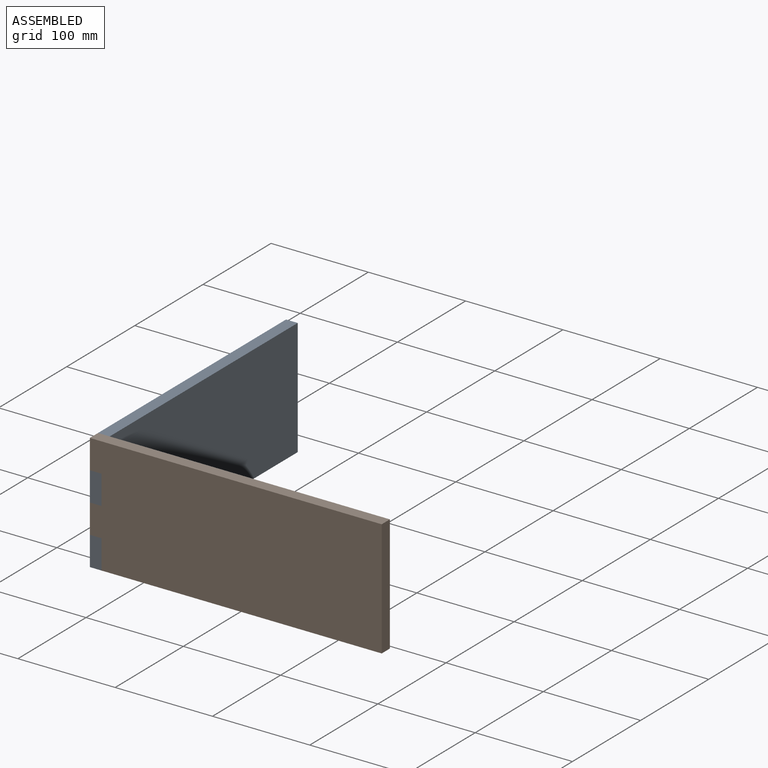
[diagram: assembled view]
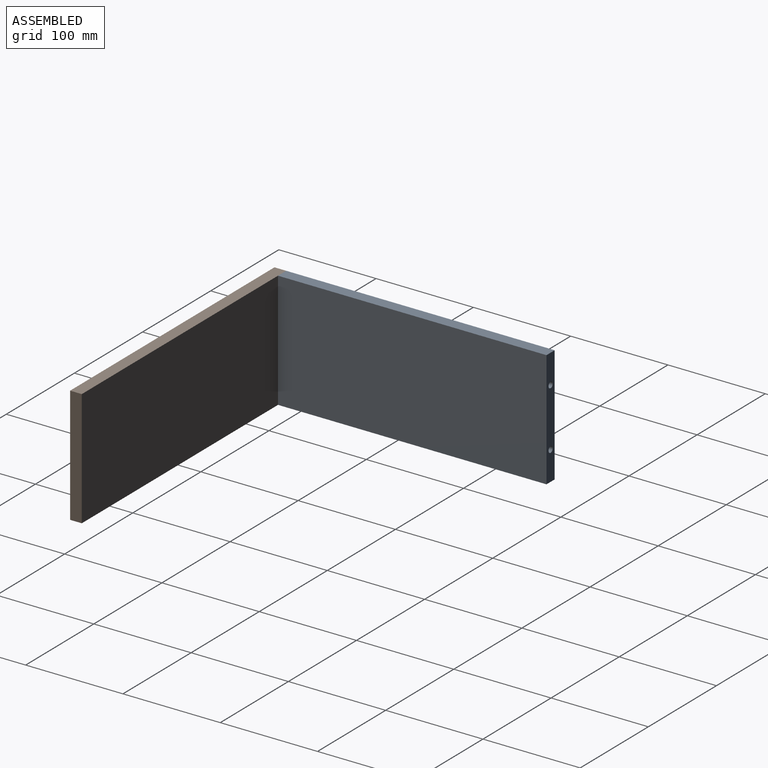
[diagram: assembled view, second angle]
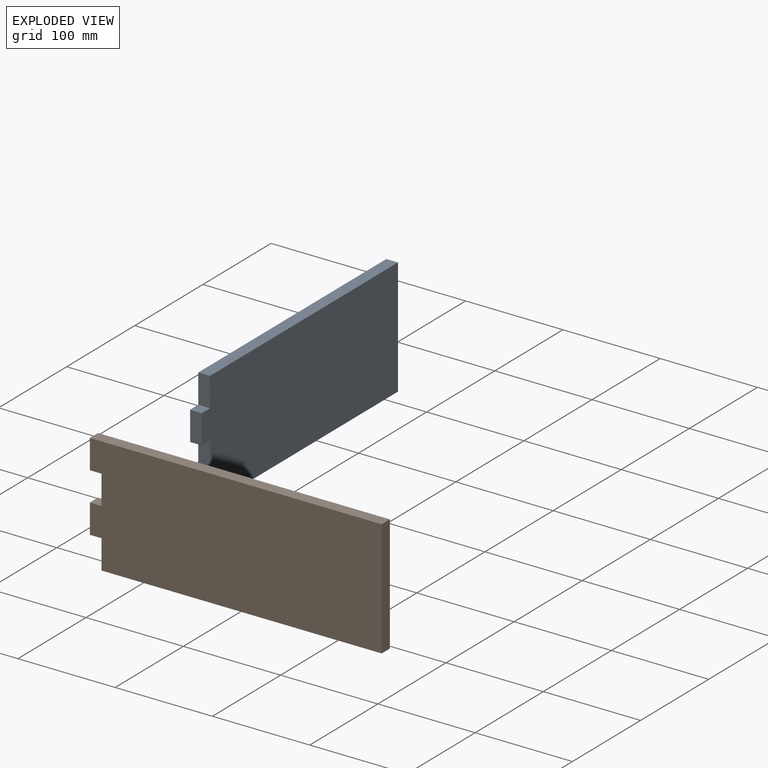
[diagram: exploded view]
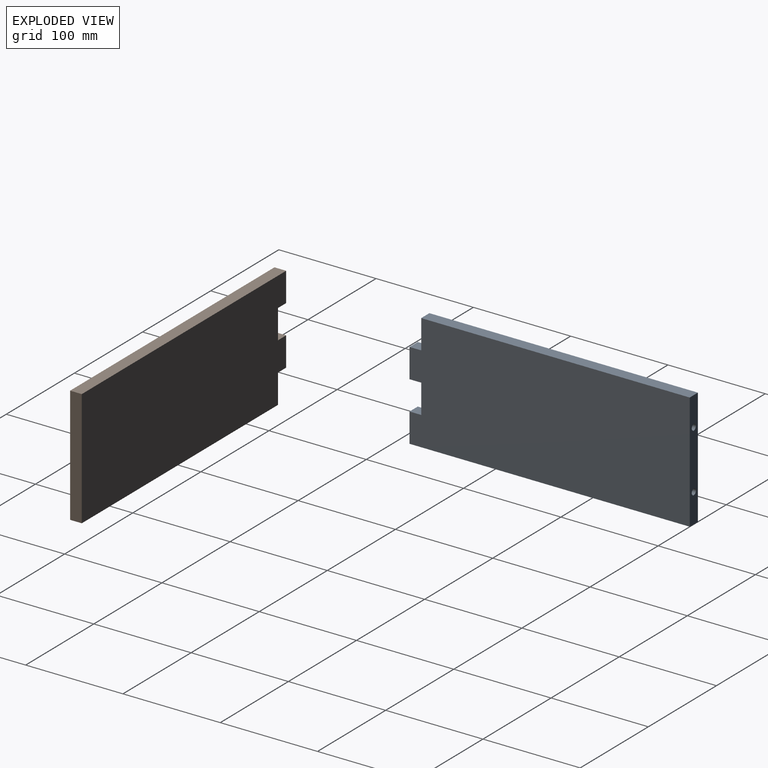
[diagram: exploded view, second angle]
ASSEMBLY  parts=2 mates=2
PART A: 16 faces, bbox 12x288x120 mm
  f0: plane 30x12mm, normal (0,-1,0), area 360mm2, adj f1,f6,f9,f10
  f1: plane 288x120mm, normal (-1,0,0), area 33840mm2, adj f0,f2,f3,f4,f5,f7,f8,f9
  f2: plane 276x12mm, normal (0,0,1), area 3312mm2, adj f1,f5,f6,f11
  f3: plane 30x12mm, normal (0,-1,0), area 360mm2, adj f1,f4,f6,f7
  f4: plane 288x12mm, normal (0,0,-1), area 3456mm2, adj f1,f3,f5,f6
  f5: plane 120x12mm, normal (0,1,0), area 1383.5mm2, adj f1,f2,f4,f6,f12,f14
  f6: plane 288x120mm, normal (1,0,0), area 33840mm2, adj f0,f2,f3,f4,f5,f7,f8,f9
  f7: plane 12x12mm, normal (0,0,1), area 144mm2, adj f1,f3,f6,f8
  f8: plane 30x12mm, normal (0,-1,0), area 360mm2, adj f1,f6,f7,f9
  f9: plane 12x12mm, normal (0,0,-1), area 144mm2, adj f0,f1,f6,f8
  f10: plane 12x12mm, normal (0,0,1), area 144mm2, adj f0,f1,f6,f11
  f11: plane 30x12mm, normal (0,-1,0), area 360mm2, adj f1,f2,f6,f10
  f12: cylinder r=3mm len=15mm, axis (0,1,0), area 282.7mm2, adj f5,f13
  f13: plane 6x6mm, normal (0,1,0), area 28.3mm2, adj f12
  f14: cylinder r=3mm len=15mm, axis (0,1,0), area 282.7mm2, adj f5,f15
  f15: plane 6x6mm, normal (0,1,0), area 28.3mm2, adj f14
PART B: 12 faces, bbox 12x300x120 mm
  f0: plane 30x12mm, normal (0,-1,0), area 360mm2, adj f2,f3,f4,f7
  f1: plane 30x12mm, normal (0,-1,0), area 360mm2, adj f2,f3,f8,f10
  f2: plane 300x120mm, normal (-1,0,0), area 35280mm2, adj f0,f1,f4,f5,f6,f7,f8,f9
  f3: plane 300x120mm, normal (1,0,0), area 35280mm2, adj f0,f1,f4,f5,f6,f7,f8,f9
  f4: plane 300x12mm, normal (0,0,1), area 3600mm2, adj f0,f2,f3,f6
  f5: plane 288x12mm, normal (0,0,-1), area 3456mm2, adj f2,f3,f6,f11
  f6: plane 120x12mm, normal (0,1,0), area 1440mm2, adj f2,f3,f4,f5
  f7: plane 12x12mm, normal (0,0,-1), area 144mm2, adj f0,f2,f3,f9
  f8: plane 12x12mm, normal (0,0,1), area 144mm2, adj f1,f2,f3,f9
  f9: plane 30x12mm, normal (0,-1,0), area 360mm2, adj f2,f3,f7,f8
  f10: plane 12x12mm, normal (0,0,-1), area 144mm2, adj f1,f2,f3,f11
  f11: plane 30x12mm, normal (0,-1,0), area 360mm2, adj f2,f3,f5,f10
PLACE A t=(-35.01,22.77,0)mm
PLACE B rot(axis=(0,0,-1),90deg) t=(102.99,-127.23,0)mm fixed
MATE planar A.f2 <-> B.f4  axis (0,0,1) through (-47.01,-115.23,60)mm
MATE planar B.f2 <-> A.f11  axis (0,1,0) through (-47.01,-115.23,45)mm
